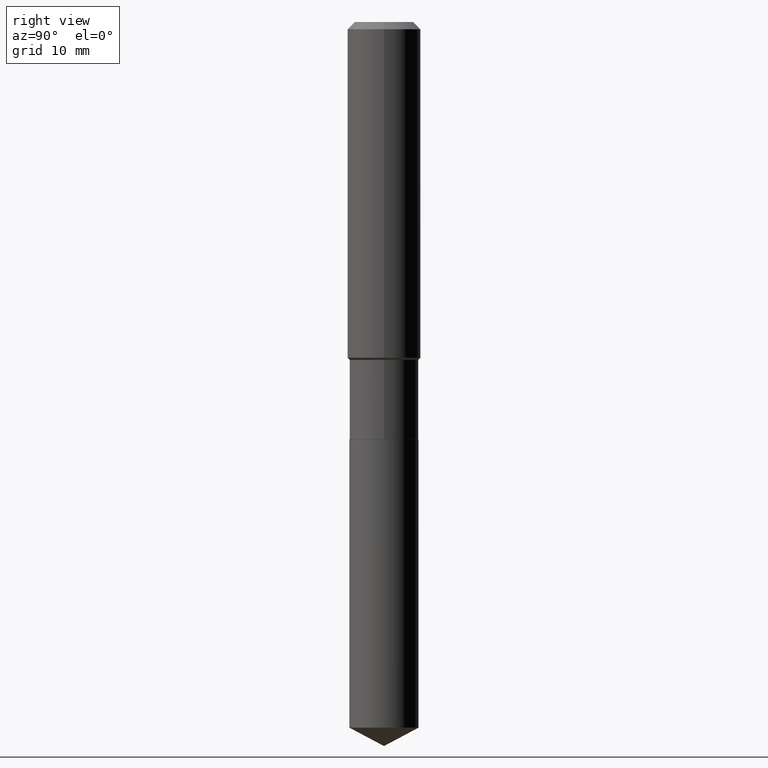
[diagram: clean part render]
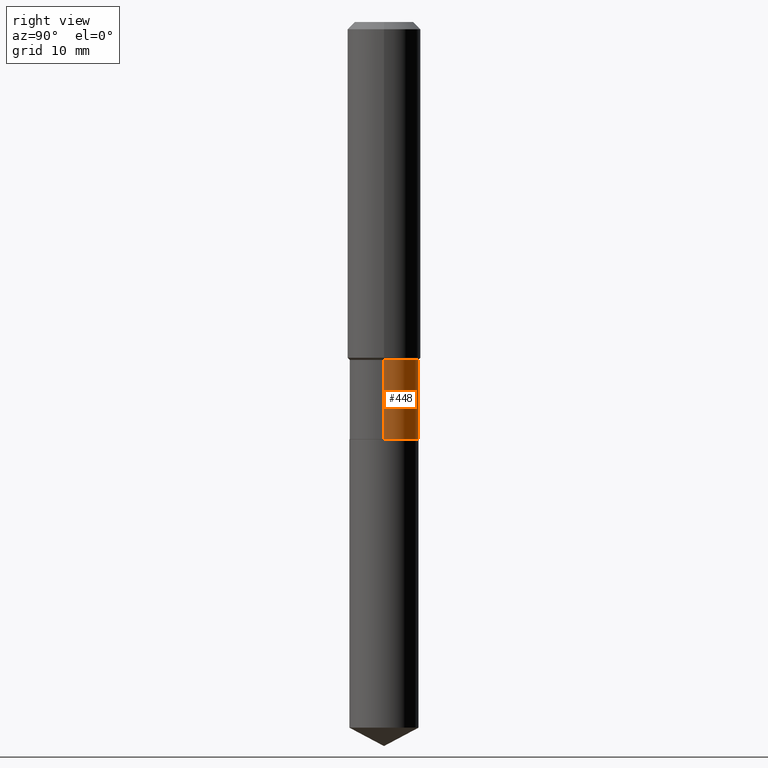
[diagram: same view with one face highlighted and labeled with its STEP entity id]
A machine part, right view. The second image highlights one B-rep face of the part: STEP entity #448.
In plain terms, the highlighted cylindrical surface (edge-blend (fillet) strip) has radius 3.7706 mm, axis along (-0, 0, 1).
Its self-contained STEP definition (entity closure, byte-faithful):
#2 = EDGE_LOOP ( 'NONE', ( #79, #457, #85, #409 ) ) ;
#79 = ORIENTED_EDGE ( 'NONE', *, *, #403, .T. ) ;
#85 = ORIENTED_EDGE ( 'NONE', *, *, #240, .F. ) ;
#99 = VERTEX_POINT ( 'NONE', #333 ) ;
#142 = CARTESIAN_POINT ( 'NONE',  ( -0.1484500000000000264, -4.607509170033001160E-15, -1.792199999999999793 ) ) ;
#164 = CARTESIAN_POINT ( 'NONE',  ( 0.1484499999999999431, -6.103807676565582525E-15, -1.451299999999999812 ) ) ;
#171 = DIRECTION ( 'NONE',  ( 1.000000000000000000, -6.982962677686265133E-15, 4.876176775795935793E-29 ) ) ;
#174 = VECTOR ( 'NONE', #486, 39.37007874015748143 ) ;
#187 = AXIS2_PLACEMENT_3D ( 'NONE', #437, #326, #283 ) ;
#227 = LINE ( 'NONE', #371, #174 ) ;
#232 = DIRECTION ( 'NONE',  ( 1.000000000000000000, -6.982962677686264344E-15, 0.000000000000000000 ) ) ;
#235 = VERTEX_POINT ( 'NONE', #142 ) ;
#238 = CIRCLE ( 'NONE', #187, 0.1484499999999999986 ) ;
#240 = EDGE_CURVE ( 'NONE', #406, #99, #385, .T. ) ;
#257 = EDGE_CURVE ( 'NONE', #357, #406, #422, .T. ) ;
#265 = CARTESIAN_POINT ( 'NONE',  ( 3.549108878416488564E-29, -5.067186867063056629E-15, -1.451299999999999812 ) ) ;
#283 = DIRECTION ( 'NONE',  ( 1.000000000000000000, -6.982962677686268288E-15, 0.000000000000000000 ) ) ;
#308 = DIRECTION ( 'NONE',  ( -2.445468806185136597E-29, 3.491481338843145583E-15, 1.000000000000000000 ) ) ;
#326 = DIRECTION ( 'NONE',  ( -2.445468806185136597E-29, 3.491481338843145583E-15, 1.000000000000000000 ) ) ;
#333 = CARTESIAN_POINT ( 'NONE',  ( -0.1484499999999999431, -4.607509170033001948E-15, -1.451299999999999812 ) ) ;
#345 = DIRECTION ( 'NONE',  ( -2.445468806185136877E-29, 3.491481338843145188E-15, 1.000000000000000000 ) ) ;
#357 = VERTEX_POINT ( 'NONE', #487 ) ;
#371 = CARTESIAN_POINT ( 'NONE',  ( -0.1484499999999999986, 1.054800691235868716E-15, -7.302159141483407353E-30 ) ) ;
#385 = CIRCLE ( 'NONE', #450, 0.1484499999999999431 ) ;
#400 = VECTOR ( 'NONE', #345, 39.37007874015748143 ) ;
#403 = EDGE_CURVE ( 'NONE', #357, #235, #238, .T. ) ;
#406 = VERTEX_POINT ( 'NONE', #164 ) ;
#408 = FACE_OUTER_BOUND ( 'NONE', #2, .T. ) ;
#409 = ORIENTED_EDGE ( 'NONE', *, *, #257, .F. ) ;
#414 = CYLINDRICAL_SURFACE ( 'NONE', #461, 0.1484499999999999986 ) ;
#422 = LINE ( 'NONE', #463, #400 ) ;
#436 = EDGE_CURVE ( 'NONE', #235, #99, #227, .T. ) ;
#437 = CARTESIAN_POINT ( 'NONE',  ( 4.382769194445001759E-29, -6.257432855474684305E-15, -1.792199999999999793 ) ) ;
#443 = DIRECTION ( 'NONE',  ( -2.445468806185136597E-29, 3.491481338843145583E-15, 1.000000000000000000 ) ) ;
#448 = ADVANCED_FACE ( 'NONE', ( #408 ), #414, .T. ) ;
#450 = AXIS2_PLACEMENT_3D ( 'NONE', #265, #308, #232 ) ;
#455 = CARTESIAN_POINT ( 'NONE',  ( 0.000000000000000000, 0.000000000000000000, 0.000000000000000000 ) ) ;
#457 = ORIENTED_EDGE ( 'NONE', *, *, #436, .T. ) ;
#461 = AXIS2_PLACEMENT_3D ( 'NONE', #455, #443, #171 ) ;
#463 = CARTESIAN_POINT ( 'NONE',  ( 0.1484499999999999986, -1.036620809502526093E-15, 7.238684423669066410E-30 ) ) ;
#486 = DIRECTION ( 'NONE',  ( -2.445468806185136877E-29, 3.491481338843145188E-15, 1.000000000000000000 ) ) ;
#487 = CARTESIAN_POINT ( 'NONE',  ( 0.1484499999999999986, -7.294053664977210990E-15, -1.792199999999999793 ) ) ;